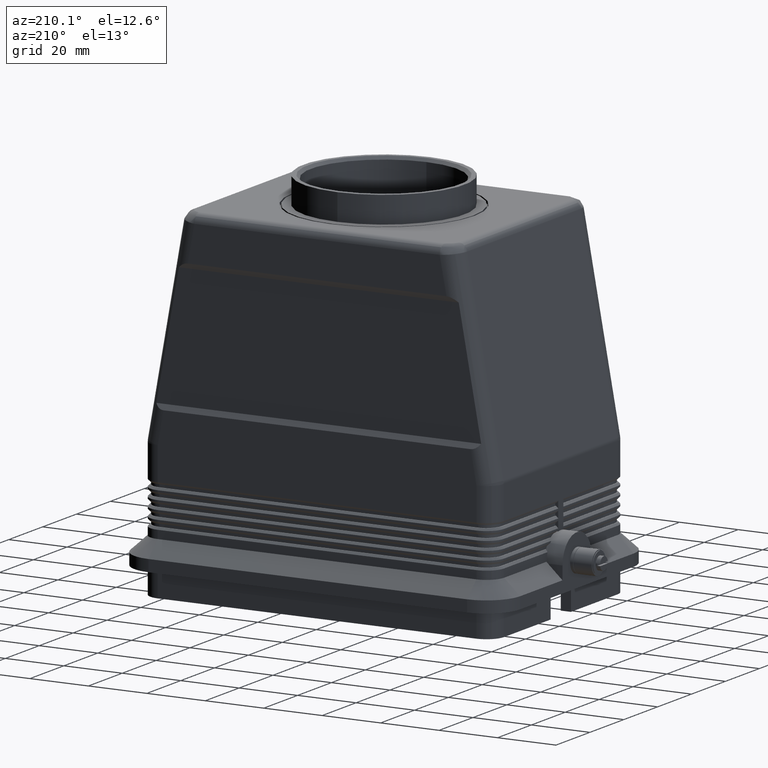
[diagram: clean part render]
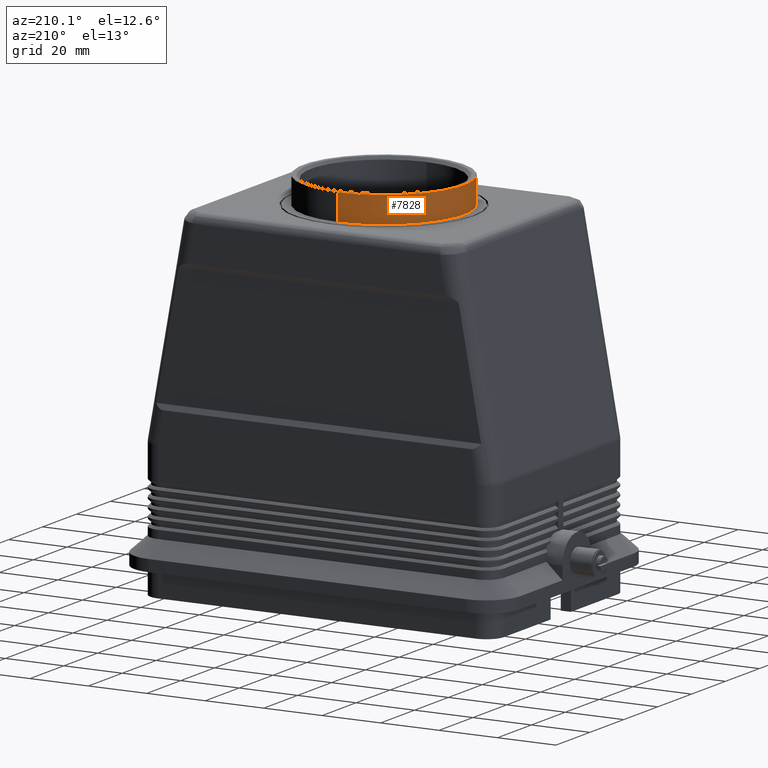
[diagram: same view with one face highlighted and labeled with its STEP entity id]
A machine part, auxiliary view. The second image highlights one B-rep face of the part: STEP entity #7828.
In plain terms, the highlighted cylindrical surface (partial cylindrical patch) has radius 27.5 mm, axis along (0, 0, -1).
Its self-contained STEP definition (entity closure, byte-faithful):
#5994=CARTESIAN_POINT('',(0.0,27.499999999999996,127.000000000000010));
#5995=VERTEX_POINT('',#5994);
#5996=CARTESIAN_POINT('',(0.0,27.500000000000000,118.0));
#5997=VERTEX_POINT('',#5996);
#5998=CARTESIAN_POINT('',(0.0,27.499999999999996,127.000000000000010));
#5999=DIRECTION('',(0.0,0.0,-1.0));
#6000=VECTOR('',#5999,9.000000000000014);
#6001=LINE('',#5998,#6000);
#6002=EDGE_CURVE('',#5995,#5997,#6001,.T.);
#6004=CARTESIAN_POINT('',(3.367667E-015,-27.499999999999996,127.0));
#6005=VERTEX_POINT('',#6004);
#6013=CARTESIAN_POINT('',(3.367667E-015,-27.500000000000000,118.0));
#6014=VERTEX_POINT('',#6013);
#6015=CARTESIAN_POINT('',(3.367667E-015,-27.500000000000000,118.0));
#6016=DIRECTION('',(0.0,0.0,1.0));
#6017=VECTOR('',#6016,9.0);
#6018=LINE('',#6015,#6017);
#6019=EDGE_CURVE('',#6014,#6005,#6018,.T.);
#7797=CARTESIAN_POINT('',(0.0,0.0,127.000000000000010));
#7798=DIRECTION('',(0.0,0.0,-1.0));
#7799=DIRECTION('',(0.0,1.0,0.0));
#7800=AXIS2_PLACEMENT_3D('',#7797,#7798,#7799);
#7801=CIRCLE('',#7800,27.499999999999996);
#7802=EDGE_CURVE('',#6005,#5995,#7801,.T.);
#7811=CARTESIAN_POINT('',(0.0,0.0,122.500000000000000));
#7812=DIRECTION('',(0.0,0.0,-1.0));
#7813=DIRECTION('',(0.0,1.0,0.0));
#7814=AXIS2_PLACEMENT_3D('',#7811,#7812,#7813);
#7815=CYLINDRICAL_SURFACE('',#7814,27.500000000000000);
#7816=ORIENTED_EDGE('',*,*,#6002,.T.);
#7817=CARTESIAN_POINT('',(0.0,0.0,118.0));
#7818=DIRECTION('',(0.0,0.0,-1.0));
#7819=DIRECTION('',(0.0,1.0,0.0));
#7820=AXIS2_PLACEMENT_3D('',#7817,#7818,#7819);
#7821=CIRCLE('',#7820,27.500000000000000);
#7822=EDGE_CURVE('',#6014,#5997,#7821,.T.);
#7823=ORIENTED_EDGE('',*,*,#7822,.F.);
#7824=ORIENTED_EDGE('',*,*,#6019,.T.);
#7825=ORIENTED_EDGE('',*,*,#7802,.T.);
#7826=EDGE_LOOP('',(#7816,#7823,#7824,#7825));
#7827=FACE_OUTER_BOUND('',#7826,.T.);
#7828=ADVANCED_FACE('',(#7827),#7815,.T.);